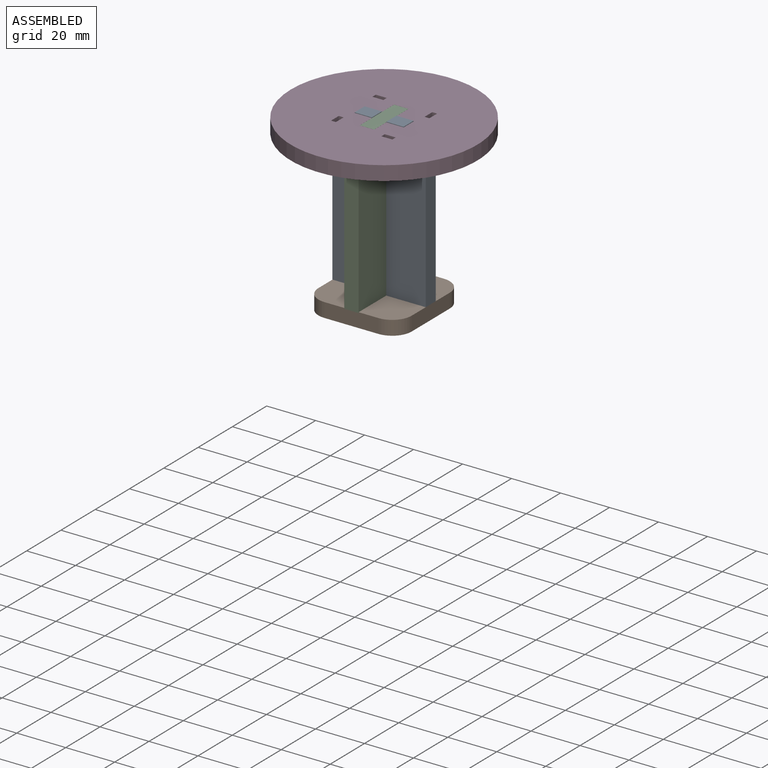
[diagram: assembled view]
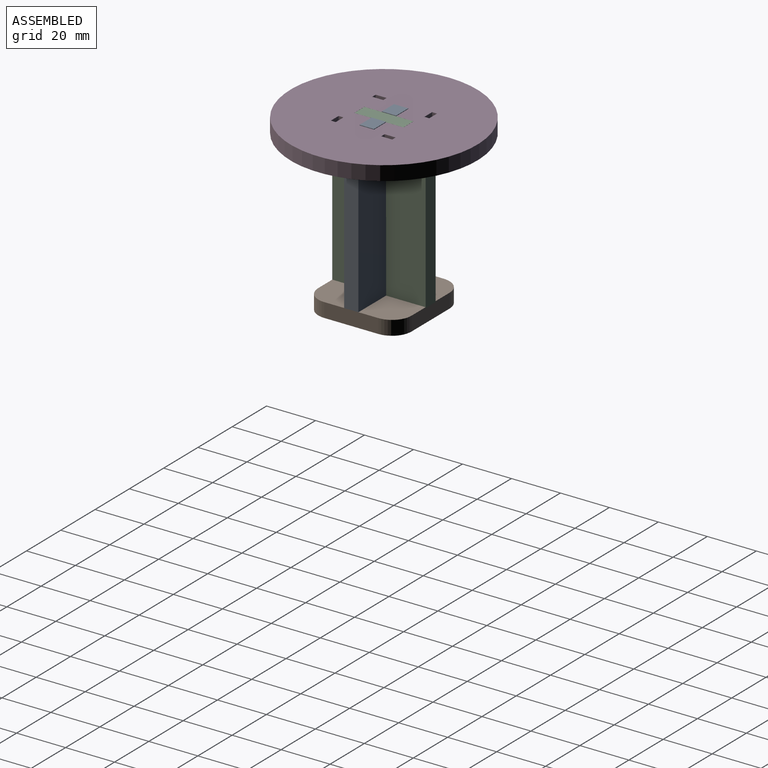
[diagram: assembled view, second angle]
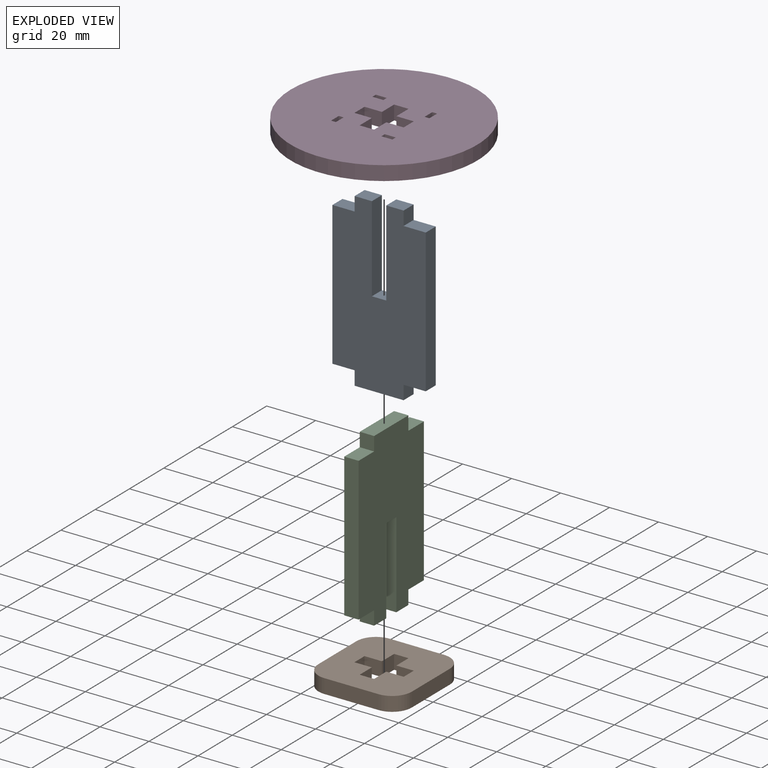
[diagram: exploded view]
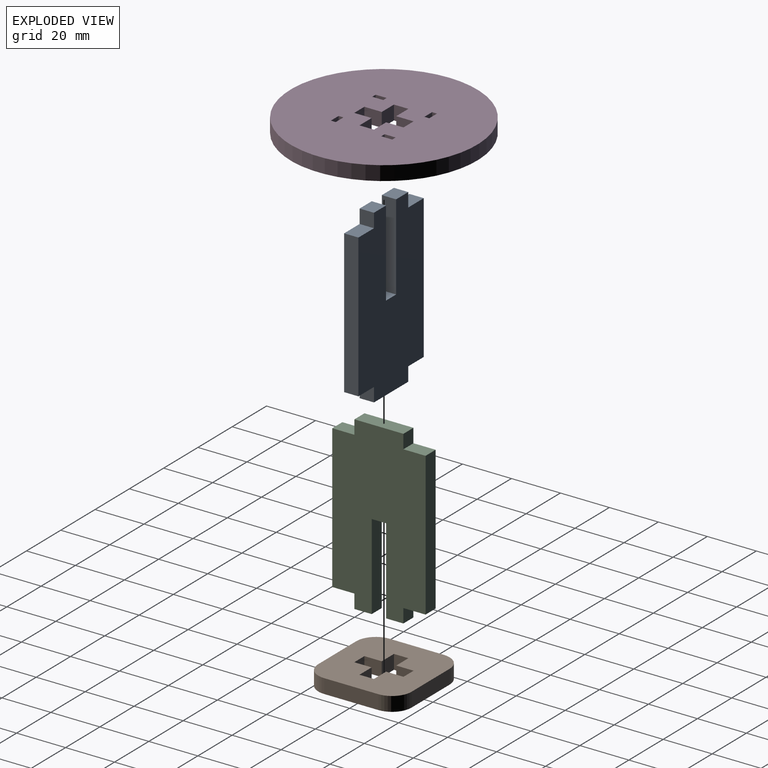
[diagram: exploded view, second angle]
ASSEMBLY  parts=4 mates=3
PART A: 18 faces, bbox 38.1x5.9x70 mm
  f0: plane 7.05x5.85mm, normal (0,0,-1), area 41.2mm2, adj f1,f6,f10,f16
  f1: plane 70x38.1mm, normal (0,-1,0), area 2253.6mm2, adj f0,f2,f3,f4,f5,f7,f8,f9
  f2: plane 20x5.85mm, normal (0,0,1), area 117mm2, adj f1,f6,f8,f14
  f3: plane 58.6x5.85mm, normal (-1,0,0), area 342.8mm2, adj f1,f6,f7,f11
  f4: plane 7.05x5.85mm, normal (0,0,-1), area 41.2mm2, adj f1,f6,f12,f15
  f5: plane 58.6x5.85mm, normal (1,0,0), area 342.8mm2, adj f1,f6,f9,f13
  f6: plane 70x38.1mm, normal (0,1,0), area 2253.6mm2, adj f0,f2,f3,f4,f5,f7,f8,f9
  f7: plane 9.05x5.85mm, normal (0,0,1), area 52.9mm2, adj f1,f3,f6,f8
  f8: plane 5.85x5.7mm, normal (-1,0,0), area 33.3mm2, adj f1,f2,f6,f7
  f9: plane 9.05x5.85mm, normal (0,0,-1), area 52.9mm2, adj f1,f5,f6,f10
  f10: plane 5.85x5.7mm, normal (1,0,0), area 33.3mm2, adj f0,f1,f6,f9
  f11: plane 9.05x5.85mm, normal (0,0,-1), area 52.9mm2, adj f1,f3,f6,f12
  f12: plane 5.85x5.7mm, normal (-1,0,0), area 33.3mm2, adj f1,f4,f6,f11
  f13: plane 9.05x5.85mm, normal (0,0,1), area 52.9mm2, adj f1,f5,f6,f14
  f14: plane 5.85x5.7mm, normal (1,0,0), area 33.3mm2, adj f1,f2,f6,f13
  f15: plane 35.1x5.85mm, normal (1,0,0), area 205.3mm2, adj f1,f4,f6,f17
  f16: plane 35.1x5.85mm, normal (-1,0,0), area 205.3mm2, adj f0,f1,f6,f17
  f17: plane 5.9x5.85mm, normal (0,0,-1), area 34.5mm2, adj f1,f6,f15,f16
PART B: 22 faces, bbox 38.1x5.9x38.1 mm
  f0: plane 38.1x38.1mm, normal (0,-1,0), area 1194.3mm2, adj f2,f3,f4,f5,f6,f7,f8,f9
  f1: plane 38.1x38.1mm, normal (0,1,0), area 1194.3mm2, adj f2,f3,f4,f5,f6,f7,f8,f9
  f2: plane 7.1x5.85mm, normal (0,0,1), area 41.5mm2, adj f0,f1,f3,f12
  f3: plane 5.9x5.85mm, normal (-1,0,0), area 34.5mm2, adj f0,f1,f2,f4
  f4: plane 7.1x5.85mm, normal (0,0,-1), area 41.5mm2, adj f0,f1,f3,f5
  f5: plane 7.1x5.85mm, normal (-1,0,0), area 41.5mm2, adj f0,f1,f4,f6
  f6: plane 5.9x5.85mm, normal (0,0,-1), area 34.5mm2, adj f0,f1,f5,f7
  f7: plane 7.1x5.85mm, normal (1,0,0), area 41.5mm2, adj f0,f1,f6,f8
  f8: plane 7.1x5.85mm, normal (0,0,-1), area 41.5mm2, adj f0,f1,f7,f9
  f9: plane 5.9x5.85mm, normal (1,0,0), area 34.5mm2, adj f0,f1,f8,f10
  f10: plane 7.1x5.85mm, normal (0,0,1), area 41.5mm2, adj f0,f1,f9,f11
  f11: plane 7.1x5.85mm, normal (1,0,0), area 41.5mm2, adj f0,f1,f10,f13
  f12: plane 7.1x5.85mm, normal (-1,0,0), area 41.5mm2, adj f0,f1,f2,f13
  f13: plane 5.9x5.85mm, normal (0,0,1), area 34.5mm2, adj f0,f1,f11,f12
  f14: plane 22.1x5.85mm, normal (0,0,1), area 129.3mm2, adj f0,f1,f18,f19
  f15: plane 22.1x5.85mm, normal (-1,0,0), area 129.3mm2, adj f0,f1,f18,f20
  f16: plane 22.1x5.85mm, normal (1,0,0), area 129.3mm2, adj f0,f1,f19,f21
  f17: plane 22.1x5.85mm, normal (0,0,-1), area 129.3mm2, adj f0,f1,f20,f21
  f18: cylinder r=8mm len=8mm, axis (0,1,0), area 73.5mm2, adj f0,f1,f14,f15
  f19: cylinder r=8mm len=8mm, axis (0,-1,0), area 73.5mm2, adj f0,f1,f14,f16
  f20: cylinder r=8mm len=8mm, axis (0,-1,0), area 73.5mm2, adj f0,f1,f15,f17
  f21: cylinder r=8mm len=8mm, axis (0,1,0), area 73.5mm2, adj f0,f1,f16,f17
PART C: same geometry as A
PART D: 31 faces, bbox 76.2x5.9x76.2 mm
  f0: plane 76.2x76.2mm, normal (0,-1,0), area 4322mm2, adj f2,f3,f4,f5,f6,f7,f8,f9
  f1: plane 76.2x76.2mm, normal (0,1,0), area 4322mm2, adj f2,f3,f4,f5,f6,f7,f8,f9
  f2: cylinder r=38.1mm len=76.2mm, axis (0,1,0), area 1400.4mm2, adj f0,f1
  f3: plane 7.1x5.85mm, normal (0,0,1), area 41.5mm2, adj f0,f1,f4,f13
  f4: plane 5.9x5.85mm, normal (-1,0,0), area 34.5mm2, adj f0,f1,f3,f5
  f5: plane 7.1x5.85mm, normal (0,0,-1), area 41.5mm2, adj f0,f1,f4,f6
  f6: plane 7.1x5.85mm, normal (-1,0,0), area 41.5mm2, adj f0,f1,f5,f7
  f7: plane 5.9x5.85mm, normal (0,0,-1), area 34.5mm2, adj f0,f1,f6,f8
  f8: plane 7.1x5.85mm, normal (1,0,0), area 41.5mm2, adj f0,f1,f7,f9
  f9: plane 7.1x5.85mm, normal (0,0,-1), area 41.5mm2, adj f0,f1,f8,f10
  f10: plane 5.9x5.85mm, normal (1,0,0), area 34.5mm2, adj f0,f1,f9,f11
  f11: plane 7.1x5.85mm, normal (0,0,1), area 41.5mm2, adj f0,f1,f10,f12
  f12: plane 7.1x5.85mm, normal (1,0,0), area 41.5mm2, adj f0,f1,f11,f14
  f13: plane 7.1x5.85mm, normal (-1,0,0), area 41.5mm2, adj f0,f1,f3,f14
  f14: plane 5.9x5.85mm, normal (0,0,1), area 34.5mm2, adj f0,f1,f12,f13
  f15: plane 5.85x2mm, normal (1,0,0), area 11.7mm2, adj f0,f1,f16,f17
  f16: plane 5.85x4.5mm, normal (0,0,-1), area 26.3mm2, adj f0,f1,f15,f18
  f17: plane 5.85x4.5mm, normal (0,0,1), area 26.3mm2, adj f0,f1,f15,f18
  f18: plane 5.85x2mm, normal (-1,0,0), area 11.7mm2, adj f0,f1,f16,f17
  f19: plane 5.85x4.5mm, normal (-1,0,0), area 26.3mm2, adj f0,f1,f20,f21
  f20: plane 5.85x2mm, normal (0,0,1), area 11.7mm2, adj f0,f1,f19,f22
  f21: plane 5.85x2mm, normal (0,0,-1), area 11.7mm2, adj f0,f1,f19,f22
  f22: plane 5.85x4.5mm, normal (1,0,0), area 26.3mm2, adj f0,f1,f20,f21
  f23: plane 5.85x4.5mm, normal (0,0,-1), area 26.3mm2, adj f0,f1,f24,f25
  f24: plane 5.85x2mm, normal (-1,0,0), area 11.7mm2, adj f0,f1,f23,f26
  f25: plane 5.85x2mm, normal (1,0,0), area 11.7mm2, adj f0,f1,f23,f26
  f26: plane 5.85x4.5mm, normal (0,0,1), area 26.3mm2, adj f0,f1,f24,f25
  f27: plane 5.85x4.5mm, normal (1,0,0), area 26.3mm2, adj f0,f1,f28,f29
  f28: plane 5.85x2mm, normal (0,0,-1), area 11.7mm2, adj f0,f1,f27,f30
  f29: plane 5.85x2mm, normal (0,0,1), area 11.7mm2, adj f0,f1,f27,f30
  f30: plane 5.85x4.5mm, normal (-1,0,0), area 26.3mm2, adj f0,f1,f28,f29
PLACE A rot(axis=(0,1,0),180deg) t=(0,2.92,-34.8)mm
PLACE B rot(axis=(-1,0,0),90deg) t=(0,0,-69.8)mm
PLACE C rot(axis=(0,0,-1),90deg) t=(2.92,0,-35)mm
PLACE D rot(axis=(-0.58,0.58,-0.58),120deg) t=(0,0,-5.85)mm
MATE fastened C.f17 <-> A.f17  axis (0,0,-1) through (0,0,-34.9)mm
MATE fastened B.f1 <-> A.f2  axis (0,0,-1) through (0,0,-69.8)mm
MATE fastened C.f2 <-> D.f2  axis (0,0,1) through (0,0,0)mm
